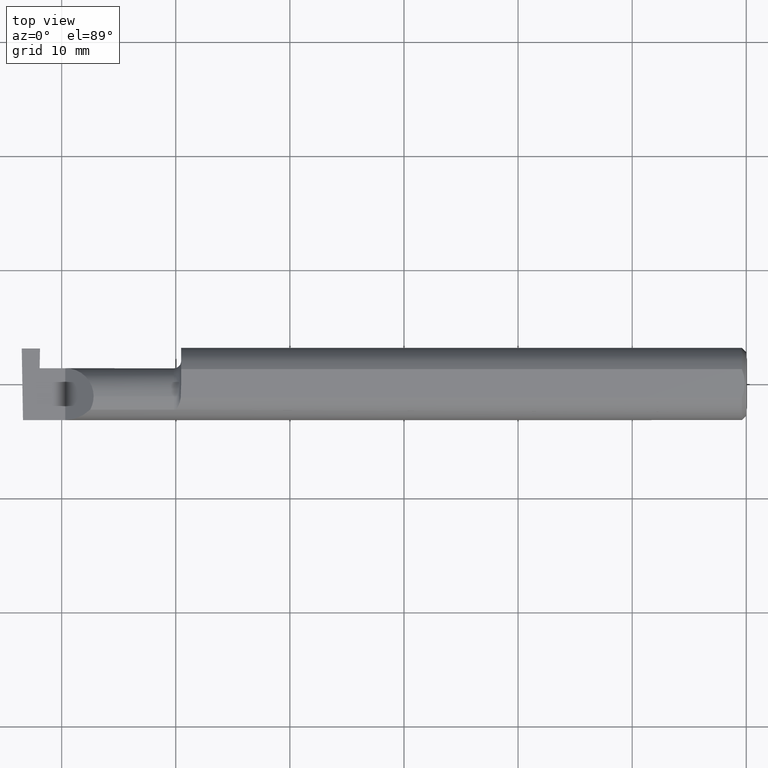
[diagram: clean part render]
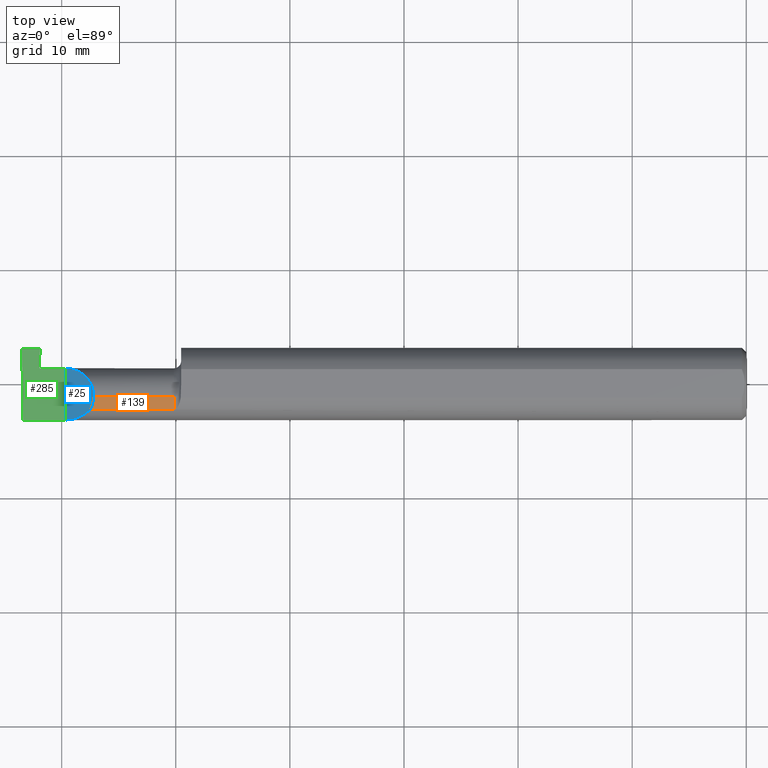
[diagram: same view with three faces highlighted in distinct colors, each labeled with its STEP entity id]
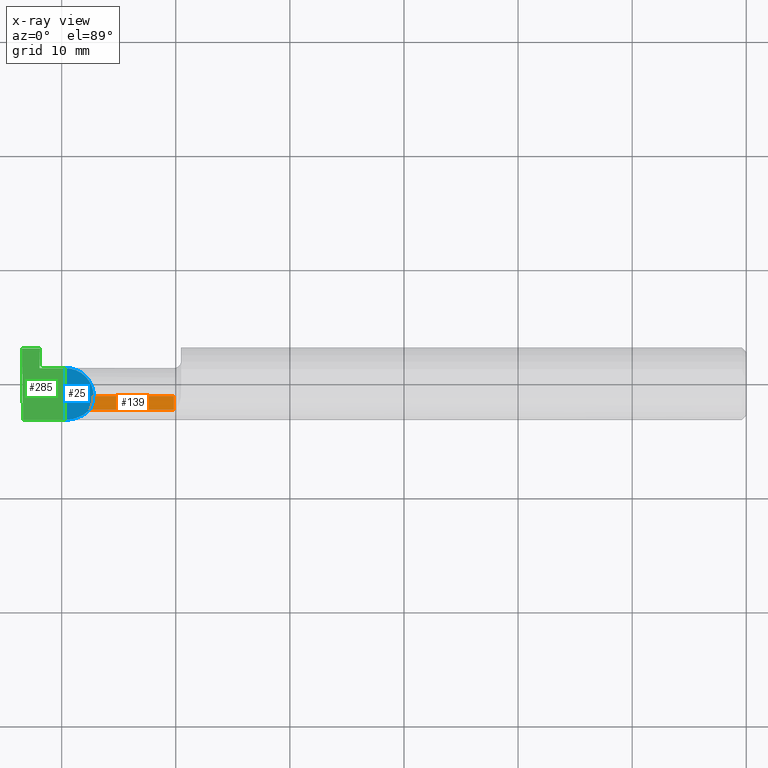
[diagram: x-ray of the same camera — body ghosted, the three highlighted faces saturated]
A machine part, top view with three faces highlighted in distinct colors.
The next image is the same camera in x-ray (body ghosted, the three faces saturated) — at least one of them is partly hidden behind the body in this view.
Their STEP definitions:

[orange] entity #139 — the highlighted cylindrical surface (edge-blend (fillet) strip) has radius 2.4892 mm, axis along (1, -0, -0).
#2 = LINE ( 'NONE', #576, #538 ) ;
#34 = CYLINDRICAL_SURFACE ( 'NONE', #408, 0.09800000000000000377 ) ;
#47 = EDGE_CURVE ( 'NONE', #480, #431, #573, .T. ) ;
#59 = CARTESIAN_POINT ( 'NONE',  ( -1.974999999999999867, -0.04385000000000001397, 0.09800000000000000377 ) ) ;
#61 = EDGE_LOOP ( 'NONE', ( #112, #383, #363, #209 ) ) ;
#66 = DIRECTION ( 'NONE',  ( -1.000000000000000000, 0.000000000000000000, 0.000000000000000000 ) ) ;
#90 = CARTESIAN_POINT ( 'NONE',  ( -2.263628075281542529, -0.09015216647662421812, 0.08637192471845822617 ) ) ;
#107 = EDGE_CURVE ( 'NONE', #236, #480, #2, .T. ) ;
#112 = ORIENTED_EDGE ( 'NONE', *, *, #174, .F. ) ;
#139 = ADVANCED_FACE ( 'NONE', ( #291 ), #34, .T. ) ;
#154 = CARTESIAN_POINT ( 'NONE',  ( -2.263628075281542529, -0.09015216647662421812, 0.08637192471845822617 ) ) ;
#174 = EDGE_CURVE ( 'NONE', #431, #784, #351, .T. ) ;
#192 = CARTESIAN_POINT ( 'NONE',  ( -2.252000000000000668, -0.06008937020638503712, 0.09799999999999998990 ) ) ;
#209 = ORIENTED_EDGE ( 'NONE', *, *, #622, .T. ) ;
#224 = DIRECTION ( 'NONE',  ( -1.000000000000000000, 0.000000000000000000, 0.000000000000000000 ) ) ;
#236 = VERTEX_POINT ( 'NONE', #773 ) ;
#289 = DIRECTION ( 'NONE',  ( 1.000000000000000000, -0.000000000000000000, -0.000000000000000000 ) ) ;
#291 = FACE_OUTER_BOUND ( 'NONE', #61, .T. ) ;
#328 = CARTESIAN_POINT ( 'NONE',  ( -2.252000000000000668, -0.04385000000000001397, 0.09800000000000000377 ) ) ;
#351 = LINE ( 'NONE', #652, #413 ) ;
#363 = ORIENTED_EDGE ( 'NONE', *, *, #107, .F. ) ;
#383 = ORIENTED_EDGE ( 'NONE', *, *, #47, .F. ) ;
#399 = CARTESIAN_POINT ( 'NONE',  ( -1.949999999999999956, -0.04385000000000001397, 0.000000000000000000 ) ) ;
#408 = AXIS2_PLACEMENT_3D ( 'NONE', #399, #289, #578 ) ;
#413 = VECTOR ( 'NONE', #459, 39.37007874015748143 ) ;
#420 = CARTESIAN_POINT ( 'NONE',  ( -2.255955442396118560, -0.07583965973232772995, 0.09404455760388213958 ) ) ;
#431 = VERTEX_POINT ( 'NONE', #328 ) ;
#452 = DIRECTION ( 'NONE',  ( 0.000000000000000000, 0.000000000000000000, 1.000000000000000000 ) ) ;
#459 = DIRECTION ( 'NONE',  ( 1.000000000000000000, -0.000000000000000000, -0.000000000000000000 ) ) ;
#480 = VERTEX_POINT ( 'NONE', #154 ) ;
#512 = CARTESIAN_POINT ( 'NONE',  ( -1.974999999999999867, -0.04385000000000001397, 0.000000000000000000 ) ) ;
#538 = VECTOR ( 'NONE', #66, 39.37007874015748143 ) ;
#544 = CIRCLE ( 'NONE', #699, 0.09800000000000000377 ) ;
#573 =( BOUNDED_CURVE ( )  B_SPLINE_CURVE ( 3, ( #90, #420, #192, #627 ),
 .UNSPECIFIED., .F., .F. ) 
 B_SPLINE_CURVE_WITH_KNOTS ( ( 4, 4 ),
 ( 5.791092865617133434, 6.283185307179586232 ),
 .UNSPECIFIED. ) 
 CURVE ( )  GEOMETRIC_REPRESENTATION_ITEM ( )  RATIONAL_B_SPLINE_CURVE ( ( 1.000000000000000000, 0.9799220177372784946, 0.9799220177372784946, 1.000000000000000000 ) ) 
 REPRESENTATION_ITEM ( '' )  );
#576 = CARTESIAN_POINT ( 'NONE',  ( -2.205999999999999961, -0.09015216647662482874, 0.08637192471845768493 ) ) ;
#578 = DIRECTION ( 'NONE',  ( 0.000000000000000000, 0.000000000000000000, 1.000000000000000000 ) ) ;
#622 = EDGE_CURVE ( 'NONE', #236, #784, #544, .T. ) ;
#627 = CARTESIAN_POINT ( 'NONE',  ( -2.252000000000000668, -0.04385000000000001397, 0.09800000000000000377 ) ) ;
#652 = CARTESIAN_POINT ( 'NONE',  ( -1.949999999999999956, -0.04385000000000001397, 0.09800000000000000377 ) ) ;
#699 = AXIS2_PLACEMENT_3D ( 'NONE', #512, #224, #452 ) ;
#773 = CARTESIAN_POINT ( 'NONE',  ( -1.974999999999999867, -0.09015216647662482874, 0.08637192471845768493 ) ) ;
#784 = VERTEX_POINT ( 'NONE', #59 ) ;

[blue] entity #25 — the highlighted planar face has unit normal (0.7071, 0, -0.7071).
#9 = EDGE_LOOP ( 'NONE', ( #520, #484, #349, #774 ) ) ;
#25 = ADVANCED_FACE ( 'NONE', ( #695 ), #668, .F. ) ;
#32 = CARTESIAN_POINT ( 'NONE',  ( -2.350000000000000089, 0.05414999999999988572, 1.836970198721028825E-17 ) ) ;
#35 = EDGE_CURVE ( 'NONE', #566, #480, #326, .T. ) ;
#47 = EDGE_CURVE ( 'NONE', #480, #431, #573, .T. ) ;
#60 = CARTESIAN_POINT ( 'NONE',  ( -2.350000000000000089, -0.2000000000000000111, 1.836970198721028825E-17 ) ) ;
#88 =( BOUNDED_CURVE ( )  B_SPLINE_CURVE ( 3, ( #244, #324, #568, #564 ),
 .UNSPECIFIED., .F., .F. ) 
 B_SPLINE_CURVE_WITH_KNOTS ( ( 4, 4 ),
 ( 0.000000000000000000, 1.570796326794896558 ),
 .UNSPECIFIED. ) 
 CURVE ( )  GEOMETRIC_REPRESENTATION_ITEM ( )  RATIONAL_B_SPLINE_CURVE ( ( 1.000000000000000000, 0.8047378541243649375, 0.8047378541243649375, 1.000000000000000000 ) ) 
 REPRESENTATION_ITEM ( '' )  );
#90 = CARTESIAN_POINT ( 'NONE',  ( -2.263628075281542529, -0.09015216647662421812, 0.08637192471845822617 ) ) ;
#116 = CARTESIAN_POINT ( 'NONE',  ( -2.350000000000000089, -0.2000000000000000111, 1.836970198721028825E-17 ) ) ;
#154 = CARTESIAN_POINT ( 'NONE',  ( -2.263628075281542529, -0.09015216647662421812, 0.08637192471845822617 ) ) ;
#184 = DIRECTION ( 'NONE',  ( 0.000000000000000000, 1.000000000000000000, 0.000000000000000000 ) ) ;
#187 = CARTESIAN_POINT ( 'NONE',  ( -2.350000000000000089, -0.1248500000000000026, 1.836970198721028825E-17 ) ) ;
#192 = CARTESIAN_POINT ( 'NONE',  ( -2.252000000000000668, -0.06008937020638503712, 0.09799999999999998990 ) ) ;
#244 = CARTESIAN_POINT ( 'NONE',  ( -2.252000000000000668, -0.04385000000000001397, 0.09800000000000000377 ) ) ;
#324 = CARTESIAN_POINT ( 'NONE',  ( -2.252000000000000668, 0.01355707088743670317, 0.09799999999999996214 ) ) ;
#326 =( BOUNDED_CURVE ( )  B_SPLINE_CURVE ( 3, ( #187, #565, #631, #389 ),
 .UNSPECIFIED., .F., .T. ) 
 B_SPLINE_CURVE_WITH_KNOTS ( ( 4, 4 ),
 ( 4.712388980384690562, 5.476375539154175520 ),
 .UNSPECIFIED. ) 
 CURVE ( )  GEOMETRIC_REPRESENTATION_ITEM ( )  RATIONAL_B_SPLINE_CURVE ( ( 1.000000000000000000, 0.9519489620492029847, 0.9519489620492029847, 1.000000000000000000 ) ) 
 REPRESENTATION_ITEM ( '' )  );
#328 = CARTESIAN_POINT ( 'NONE',  ( -2.252000000000000668, -0.04385000000000001397, 0.09800000000000000377 ) ) ;
#349 = ORIENTED_EDGE ( 'NONE', *, *, #660, .F. ) ;
#361 = EDGE_CURVE ( 'NONE', #431, #609, #88, .T. ) ;
#362 = DIRECTION ( 'NONE',  ( 0.7071067811865492381, 0.000000000000000000, -0.7071067811865459074 ) ) ;
#385 = DIRECTION ( 'NONE',  ( 0.7071067811865459074, 0.000000000000000000, 0.7071067811865492381 ) ) ;
#389 = CARTESIAN_POINT ( 'NONE',  ( -2.263628075281542529, -0.09015216647662421812, 0.08637192471845822617 ) ) ;
#420 = CARTESIAN_POINT ( 'NONE',  ( -2.255955442396118560, -0.07583965973232772995, 0.09404455760388213958 ) ) ;
#431 = VERTEX_POINT ( 'NONE', #328 ) ;
#480 = VERTEX_POINT ( 'NONE', #154 ) ;
#484 = ORIENTED_EDGE ( 'NONE', *, *, #361, .T. ) ;
#520 = ORIENTED_EDGE ( 'NONE', *, *, #47, .T. ) ;
#564 = CARTESIAN_POINT ( 'NONE',  ( -2.350000000000000089, 0.05414999999999988572, 1.836970198721028825E-17 ) ) ;
#565 = CARTESIAN_POINT ( 'NONE',  ( -2.317406910344188997, -0.1248500000000000304, 0.03259308965581166062 ) ) ;
#566 = VERTEX_POINT ( 'NONE', #704 ) ;
#568 = CARTESIAN_POINT ( 'NONE',  ( -2.292592929112563738, 0.05415000000000004532, 0.05740707088743669112 ) ) ;
#573 =( BOUNDED_CURVE ( )  B_SPLINE_CURVE ( 3, ( #90, #420, #192, #627 ),
 .UNSPECIFIED., .F., .F. ) 
 B_SPLINE_CURVE_WITH_KNOTS ( ( 4, 4 ),
 ( 5.791092865617133434, 6.283185307179586232 ),
 .UNSPECIFIED. ) 
 CURVE ( )  GEOMETRIC_REPRESENTATION_ITEM ( )  RATIONAL_B_SPLINE_CURVE ( ( 1.000000000000000000, 0.9799220177372784946, 0.9799220177372784946, 1.000000000000000000 ) ) 
 REPRESENTATION_ITEM ( '' )  );
#609 = VERTEX_POINT ( 'NONE', #32 ) ;
#627 = CARTESIAN_POINT ( 'NONE',  ( -2.252000000000000668, -0.04385000000000001397, 0.09800000000000000377 ) ) ;
#631 = CARTESIAN_POINT ( 'NONE',  ( -2.287163018370355072, -0.1127002472623169216, 0.06283698162964553025 ) ) ;
#660 = EDGE_CURVE ( 'NONE', #566, #609, #729, .T. ) ;
#668 = PLANE ( 'NONE',  #785 ) ;
#685 = VECTOR ( 'NONE', #184, 39.37007874015748143 ) ;
#695 = FACE_OUTER_BOUND ( 'NONE', #9, .T. ) ;
#704 = CARTESIAN_POINT ( 'NONE',  ( -2.350000000000000089, -0.1248500000000000026, 1.836970198721028825E-17 ) ) ;
#729 = LINE ( 'NONE', #116, #685 ) ;
#774 = ORIENTED_EDGE ( 'NONE', *, *, #35, .T. ) ;
#785 = AXIS2_PLACEMENT_3D ( 'NONE', #60, #362, #385 ) ;

[green] entity #285 — the highlighted planar face has unit normal (0, 0, -1).
#6 = DIRECTION ( 'NONE',  ( 1.224646799147352221E-16, 0.000000000000000000, -1.000000000000000000 ) ) ;
#20 = LINE ( 'NONE', #257, #42 ) ;
#26 = DIRECTION ( 'NONE',  ( 1.000000000000000000, -0.000000000000000000, -0.000000000000000000 ) ) ;
#32 = CARTESIAN_POINT ( 'NONE',  ( -2.350000000000000089, 0.05414999999999988572, 1.836970198721028825E-17 ) ) ;
#42 = VECTOR ( 'NONE', #200, 39.37007874015748854 ) ;
#45 = ORIENTED_EDGE ( 'NONE', *, *, #404, .T. ) ;
#50 = ORIENTED_EDGE ( 'NONE', *, *, #106, .F. ) ;
#92 = LINE ( 'NONE', #681, #148 ) ;
#103 = DIRECTION ( 'NONE',  ( -0.01744642479411464761, 0.9998477995484629233, -2.135106780035675284E-18 ) ) ;
#106 = EDGE_CURVE ( 'NONE', #321, #542, #700, .T. ) ;
#116 = CARTESIAN_POINT ( 'NONE',  ( -2.350000000000000089, -0.2000000000000000111, 1.836970198721028825E-17 ) ) ;
#148 = VECTOR ( 'NONE', #26, 39.37007874015748143 ) ;
#157 = CARTESIAN_POINT ( 'NONE',  ( -1.949999999999999956, 0.05414999999999998981, 6.735557395310438818E-17 ) ) ;
#167 = ORIENTED_EDGE ( 'NONE', *, *, #393, .T. ) ;
#172 = CARTESIAN_POINT ( 'NONE',  ( -2.495690077103728921, -0.1248499999950965084, 1.733801157256528502E-17 ) ) ;
#173 = VECTOR ( 'NONE', #583, 39.37007874015748143 ) ;
#184 = DIRECTION ( 'NONE',  ( 0.000000000000000000, 1.000000000000000000, 0.000000000000000000 ) ) ;
#200 = DIRECTION ( 'NONE',  ( -0.01742050049977935181, -0.9998482515673751125, -2.130797594925150286E-18 ) ) ;
#231 = CARTESIAN_POINT ( 'NONE',  ( -2.494380489674781209, -0.1999019447116721915, 6.881915332554903690E-19 ) ) ;
#249 = VECTOR ( 'NONE', #103, 39.37007874015748854 ) ;
#257 = CARTESIAN_POINT ( 'NONE',  ( -2.442630281473412435, -0.2009995608920633059, 7.025764216157016034E-18 ) ) ;
#261 = AXIS2_PLACEMENT_3D ( 'NONE', #601, #6, #540 ) ;
#278 = CARTESIAN_POINT ( 'NONE',  ( -2.436999999999999833, 0.1221499999999999808, -3.306546357697866753E-19 ) ) ;
#285 = ADVANCED_FACE ( 'NONE', ( #730 ), #298, .F. ) ;
#287 = LINE ( 'NONE', #157, #173 ) ;
#298 = PLANE ( 'NONE',  #261 ) ;
#316 = VECTOR ( 'NONE', #334, 39.37007874015748143 ) ;
#320 = VERTEX_POINT ( 'NONE', #172 ) ;
#321 = VERTEX_POINT ( 'NONE', #676 ) ;
#334 = DIRECTION ( 'NONE',  ( 1.000000000000000000, -3.281539380878421255E-15, 1.224646799147352221E-16 ) ) ;
#366 = CARTESIAN_POINT ( 'NONE',  ( -2.499999999999999112, 0.05415000000000022573, 1.021359390568321722E-31 ) ) ;
#367 = ORIENTED_EDGE ( 'NONE', *, *, #636, .T. ) ;
#375 = LINE ( 'NONE', #505, #759 ) ;
#386 = EDGE_CURVE ( 'NONE', #509, #321, #20, .T. ) ;
#387 = ORIENTED_EDGE ( 'NONE', *, *, #660, .T. ) ;
#393 = EDGE_CURVE ( 'NONE', #509, #563, #375, .T. ) ;
#404 = EDGE_CURVE ( 'NONE', #320, #566, #92, .T. ) ;
#455 = CARTESIAN_POINT ( 'NONE',  ( -2.436999999999999833, 0.05415000000000001062, 6.735569773860069075E-17 ) ) ;
#500 = EDGE_CURVE ( 'NONE', #320, #563, #766, .T. ) ;
#505 = CARTESIAN_POINT ( 'NONE',  ( -2.399999999999999911, 0.1221499999999999808, -3.306546357697866753E-19 ) ) ;
#509 = VERTEX_POINT ( 'NONE', #278 ) ;
#517 = CARTESIAN_POINT ( 'NONE',  ( -2.500000000000000444, 0.1221499999999999808, 1.947508823608312588E-17 ) ) ;
#540 = DIRECTION ( 'NONE',  ( 1.000000000000000000, 0.000000000000000000, 1.224646799147352221E-16 ) ) ;
#542 = VERTEX_POINT ( 'NONE', #455 ) ;
#556 = DIRECTION ( 'NONE',  ( -1.000000000000000000, 0.000000000000000000, 0.000000000000000000 ) ) ;
#563 = VERTEX_POINT ( 'NONE', #517 ) ;
#566 = VERTEX_POINT ( 'NONE', #704 ) ;
#583 = DIRECTION ( 'NONE',  ( -1.000000000000000000, 0.000000000000000000, 0.000000000000000000 ) ) ;
#601 = CARTESIAN_POINT ( 'NONE',  ( -2.500000000000000000, -0.2000000000000000111, 0.000000000000000000 ) ) ;
#609 = VERTEX_POINT ( 'NONE', #32 ) ;
#623 = ORIENTED_EDGE ( 'NONE', *, *, #500, .F. ) ;
#636 = EDGE_CURVE ( 'NONE', #609, #542, #287, .T. ) ;
#660 = EDGE_CURVE ( 'NONE', #566, #609, #729, .T. ) ;
#669 = ORIENTED_EDGE ( 'NONE', *, *, #386, .F. ) ;
#676 = CARTESIAN_POINT ( 'NONE',  ( -2.438184773821555407, 0.05415000000000002450, 2.085914090430173381E-17 ) ) ;
#681 = CARTESIAN_POINT ( 'NONE',  ( -3.749399456654637998E-32, -0.1248500000000000026, 3.061616997868380676E-16 ) ) ;
#685 = VECTOR ( 'NONE', #184, 39.37007874015748143 ) ;
#696 = EDGE_LOOP ( 'NONE', ( #45, #387, #367, #50, #669, #167, #623 ) ) ;
#700 = LINE ( 'NONE', #366, #316 ) ;
#704 = CARTESIAN_POINT ( 'NONE',  ( -2.350000000000000089, -0.1248500000000000026, 1.836970198721028825E-17 ) ) ;
#729 = LINE ( 'NONE', #116, #685 ) ;
#730 = FACE_OUTER_BOUND ( 'NONE', #696, .T. ) ;
#759 = VECTOR ( 'NONE', #556, 39.37007874015748143 ) ;
#766 = LINE ( 'NONE', #231, #249 ) ;